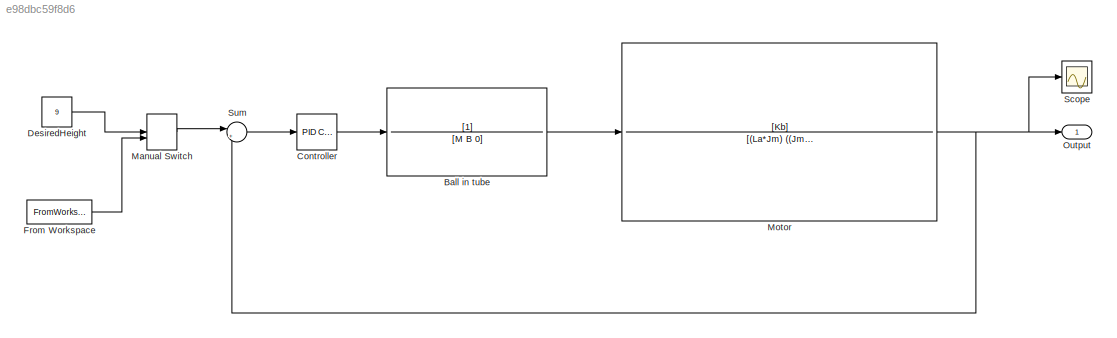
MODEL slx_e98dbc59f8d6
KIND model
CONFIG AbsTol = auto
CONFIG EnableMultiTasking = off
CONFIG FixedStep = auto
CONFIG MaxStep = auto
CONFIG MinStep = auto
CONFIG RelTol = 1e-3
CONFIG SampleTimeConstraint = Unconstrained
CONFIG Solver = VariableStepAuto
CONFIG SolverName = VariableStepAuto
CONFIG StartTime = 0.0
CONFIG StopTime = 10.0
BLOCK [TransferFcn] Ball in tube
  Denominator = [M B 0]
BLOCK [Reference] Controller  REF=simulink/Continuous/PID Controller
  Ports = [1, 1]
  SourceBlock = simulink/Continuous/PID Controller
  SourceProductBaseCode = SL
  SourceProductName = Simulink
  SourceType = PID 1dof
BLOCK [Constant] DesiredHeight
  OutDataTypeStr = fixdt(1,16)
  SampleTime = 0.01
  Value = 9
BLOCK [FromWorkspace] From Workspace
  SampleTime = 0
  VariableName = simT
  ZeroCross = on
BLOCK [ManualSwitch] Manual Switch
  CurrentSetting = 0
BLOCK [TransferFcn] Motor
  Denominator = [(La*Jm) ((Jm*Ra)+(Bm*La)) ((Kb*Kb)+(Bm*Ra)) 0]
  Numerator = [Kb]
BLOCK [Outport] Output
  IconDisplay = Port number
BLOCK [Scope] Scope
  Floating = off
  NumInputPorts = 1
  Ports = [1]
  ScopeSpecificationString = Simulink.scopes.TimeScopeBlockCfg('CurrentConfiguration', extmgr.ConfigurationSet(extmgr.Configuration('Core','General UI',true),extmgr.Configuration('Core','Source UI',true),extmgr.Configuration('Sources','WiredSimulink',true),extmgr.Configuration('Visuals','Time Domain',true,'SerializedDisplays',{struct('MinYLimReal','-38793.89441','MaxYLimReal','109901.31473','YLabelReal','','MinYLimMag','   0....<+1359ch>
BLOCK [Sum] Sum
  IconShape = round
  InputSameDT = off
  Inputs = |+-
  OutDataTypeStr = Inherit: Inherit via internal rule
  Ports = [2, 1]
  SaturateOnIntegerOverflow = off
LINE Ball in tube:1 -> Motor:1
LINE Controller:1 -> Ball in tube:1
LINE DesiredHeight:1 -> Manual Switch:1
LINE From Workspace:1 -> Manual Switch:2
LINE Manual Switch:1 -> Sum:1
NET Motor:1 -> Output:1, Scope:1, Sum:2
LINE Sum:1 -> Controller:1
note: NET lines group one-source signal fan-out (src -> all destinations, sorted); 1:1 wires keep LINE
